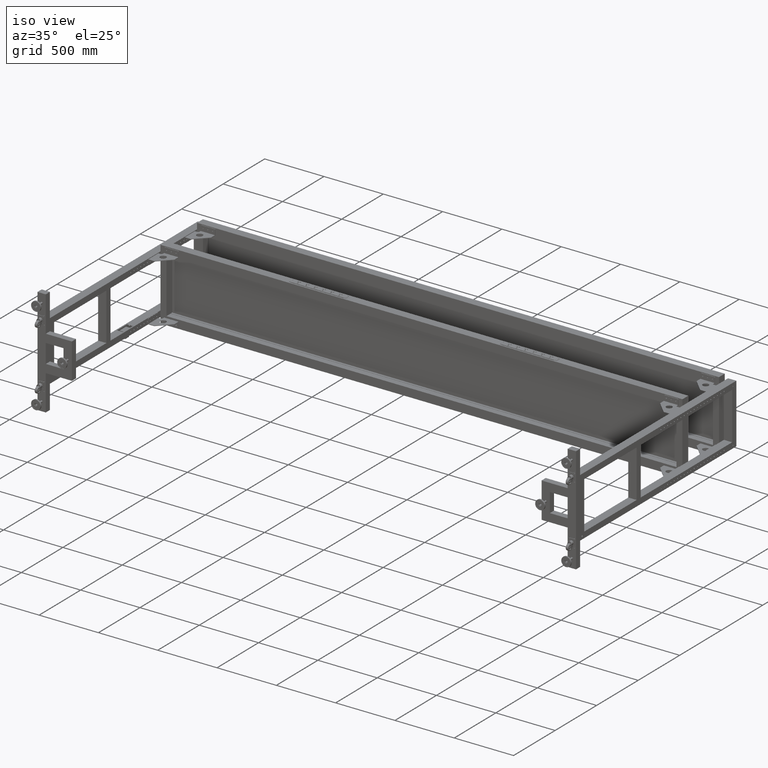
[diagram: clean part render]
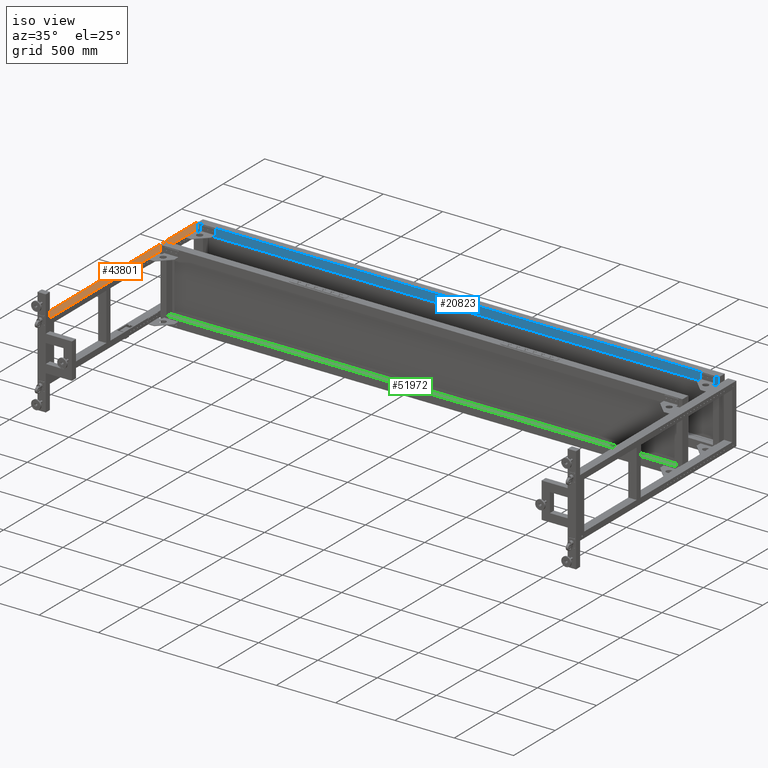
[diagram: same view with three faces highlighted in distinct colors, each labeled with its STEP entity id]
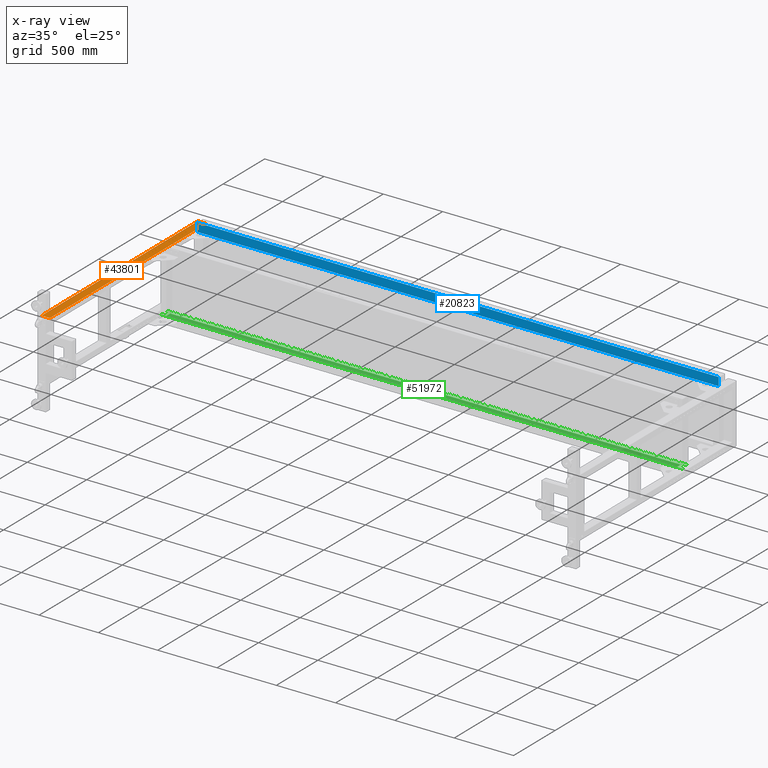
[diagram: x-ray of the same camera — body ghosted, the three highlighted faces saturated]
A machine part, iso view with three faces highlighted in distinct colors.
The next image is the same camera in x-ray (body ghosted, the three faces saturated) — at least one of them is partly hidden behind the body in this view.
Their STEP definitions:

[orange] entity #43801 — the highlighted planar face has unit normal (0, 0, -1).
#596 = DIRECTION ( 'NONE',  ( 0.000000000000000000, 1.000000000000000000, 0.000000000000000000 ) ) ;
#1081 = VECTOR ( 'NONE', #60740, 1000.000000000000000 ) ;
#1624 = DIRECTION ( 'NONE',  ( 1.000000000000000000, -1.585669478376821542E-15, 0.000000000000000000 ) ) ;
#5238 = DIRECTION ( 'NONE',  ( 0.000000000000000000, -1.000000000000000000, 0.000000000000000000 ) ) ;
#6074 = CARTESIAN_POINT ( 'NONE',  ( -1268.172487437185964, 926.9410804020109254, 249.9999999999999716 ) ) ;
#6688 = VECTOR ( 'NONE', #596, 1000.000000000000000 ) ;
#7845 = VERTEX_POINT ( 'NONE', #36109 ) ;
#8315 = LINE ( 'NONE', #39427, #73375 ) ;
#9316 = LINE ( 'NONE', #33884, #35813 ) ;
#9855 = CARTESIAN_POINT ( 'NONE',  ( -1268.156444386293742, 926.9410804020110390, 249.9999999999999716 ) ) ;
#11998 = CARTESIAN_POINT ( 'NONE',  ( -1338.172487437185055, -844.5589195979888473, 249.9999999999999716 ) ) ;
#14146 = VERTEX_POINT ( 'NONE', #57082 ) ;
#14349 = AXIS2_PLACEMENT_3D ( 'NONE', #61308, #17506, #5238 ) ;
#14712 = CARTESIAN_POINT ( 'NONE',  ( -1268.172487437185964, 1036.441080402011039, 250.0000000000000000 ) ) ;
#14898 = VECTOR ( 'NONE', #29719, 1000.000000000000000 ) ;
#14931 = VERTEX_POINT ( 'NONE', #38872 ) ;
#17506 = DIRECTION ( 'NONE',  ( 0.000000000000000000, 0.000000000000000000, -1.000000000000000000 ) ) ;
#18362 = LINE ( 'NONE', #74009, #45123 ) ;
#18543 = CARTESIAN_POINT ( 'NONE',  ( -1268.172487437185964, 996.9410804020108117, 249.9999999999999716 ) ) ;
#19083 = VECTOR ( 'NONE', #1624, 1000.000000000000000 ) ;
#22215 = DIRECTION ( 'NONE',  ( -1.000000000000000000, 0.000000000000000000, 0.000000000000000000 ) ) ;
#23491 = LINE ( 'NONE', #35766, #1081 ) ;
#24353 = CARTESIAN_POINT ( 'NONE',  ( -1268.172487437185964, 986.4410804020109254, 250.0000000000000000 ) ) ;
#26244 = ORIENTED_EDGE ( 'NONE', *, *, #32363, .T. ) ;
#26628 = EDGE_CURVE ( 'NONE', #53246, #14931, #51560, .T. ) ;
#27357 = DIRECTION ( 'NONE',  ( 0.000000000000000000, 1.000000000000000000, 0.000000000000000000 ) ) ;
#28766 = EDGE_CURVE ( 'NONE', #14146, #30409, #23491, .T. ) ;
#28950 = CARTESIAN_POINT ( 'NONE',  ( -1268.172487437185055, 919.4410804020111527, 249.9999999999999716 ) ) ;
#29719 = DIRECTION ( 'NONE',  ( -1.000000000000000000, 0.000000000000000000, 0.000000000000000000 ) ) ;
#30409 = VERTEX_POINT ( 'NONE', #11998 ) ;
#31295 = DIRECTION ( 'NONE',  ( -1.000000000000000078E-15, -1.000000000000000000, -0.000000000000000000 ) ) ;
#31688 = VERTEX_POINT ( 'NONE', #18543 ) ;
#31747 = CARTESIAN_POINT ( 'NONE',  ( -1268.172487437185964, 926.9410804020109254, 249.9999999999999716 ) ) ;
#32037 = ORIENTED_EDGE ( 'NONE', *, *, #28766, .T. ) ;
#32363 = EDGE_CURVE ( 'NONE', #65714, #49485, #38393, .T. ) ;
#33656 = VECTOR ( 'NONE', #31295, 1000.000000000000000 ) ;
#33884 = CARTESIAN_POINT ( 'NONE',  ( -1268.172487437185964, 986.4410804020109254, 250.0000000000000000 ) ) ;
#35527 = EDGE_CURVE ( 'NONE', #61952, #14146, #8315, .T. ) ;
#35766 = CARTESIAN_POINT ( 'NONE',  ( -1338.172487437185964, 986.4410804020109254, 250.0000000000000000 ) ) ;
#35813 = VECTOR ( 'NONE', #27357, 1000.000000000000000 ) ;
#36109 = CARTESIAN_POINT ( 'NONE',  ( -1268.172487437185055, -844.5589195979888473, 249.9999999999999716 ) ) ;
#36650 = LINE ( 'NONE', #78827, #14898 ) ;
#37132 = PLANE ( 'NONE',  #14349 ) ;
#37664 = CARTESIAN_POINT ( 'NONE',  ( -1338.172487437185055, 919.4410804020136538, 249.9999999999999716 ) ) ;
#37765 = ORIENTED_EDGE ( 'NONE', *, *, #39877, .T. ) ;
#38016 = EDGE_LOOP ( 'NONE', ( #56034, #77071, #53940, #32037, #73198, #37765, #47497, #69491, #26244 ) ) ;
#38393 = LINE ( 'NONE', #6074, #61490 ) ;
#38872 = CARTESIAN_POINT ( 'NONE',  ( -1268.156444386293742, 919.4410804020135402, 249.9999999999999716 ) ) ;
#38931 = EDGE_CURVE ( 'NONE', #31688, #61952, #9316, .T. ) ;
#39427 = CARTESIAN_POINT ( 'NONE',  ( -1338.172487437185964, 1036.441080402011039, 250.0000000000000000 ) ) ;
#39877 = EDGE_CURVE ( 'NONE', #7845, #53246, #18362, .T. ) ;
#43185 = LINE ( 'NONE', #24353, #6688 ) ;
#43801 = ADVANCED_FACE ( 'NONE', ( #68239 ), #37132, .F. ) ;
#44212 = EDGE_CURVE ( 'NONE', #7845, #30409, #36650, .T. ) ;
#45123 = VECTOR ( 'NONE', #55610, 1000.000000000000000 ) ;
#47497 = ORIENTED_EDGE ( 'NONE', *, *, #26628, .T. ) ;
#49485 = VERTEX_POINT ( 'NONE', #31747 ) ;
#49711 = LINE ( 'NONE', #54654, #33656 ) ;
#51560 = LINE ( 'NONE', #37664, #19083 ) ;
#53246 = VERTEX_POINT ( 'NONE', #28950 ) ;
#53940 = ORIENTED_EDGE ( 'NONE', *, *, #35527, .T. ) ;
#54654 = CARTESIAN_POINT ( 'NONE',  ( -1268.156444386293742, 986.4410804020136538, 249.9999999999999716 ) ) ;
#55610 = DIRECTION ( 'NONE',  ( 0.000000000000000000, 1.000000000000000000, 0.000000000000000000 ) ) ;
#56034 = ORIENTED_EDGE ( 'NONE', *, *, #62739, .T. ) ;
#57082 = CARTESIAN_POINT ( 'NONE',  ( -1338.172487437185964, 1036.441080402011039, 250.0000000000000000 ) ) ;
#60740 = DIRECTION ( 'NONE',  ( 0.000000000000000000, -1.000000000000000000, 0.000000000000000000 ) ) ;
#61308 = CARTESIAN_POINT ( 'NONE',  ( -1303.172487437185964, 1011.441080402011039, 250.0000000000000000 ) ) ;
#61490 = VECTOR ( 'NONE', #69089, 1000.000000000000000 ) ;
#61952 = VERTEX_POINT ( 'NONE', #14712 ) ;
#62739 = EDGE_CURVE ( 'NONE', #49485, #31688, #43185, .T. ) ;
#65714 = VERTEX_POINT ( 'NONE', #9855 ) ;
#68239 = FACE_OUTER_BOUND ( 'NONE', #38016, .T. ) ;
#69089 = DIRECTION ( 'NONE',  ( -1.000000000000000000, 4.448884876874220047E-16, 0.000000000000000000 ) ) ;
#69491 = ORIENTED_EDGE ( 'NONE', *, *, #70607, .F. ) ;
#70607 = EDGE_CURVE ( 'NONE', #65714, #14931, #49711, .T. ) ;
#73198 = ORIENTED_EDGE ( 'NONE', *, *, #44212, .F. ) ;
#73375 = VECTOR ( 'NONE', #22215, 1000.000000000000000 ) ;
#74009 = CARTESIAN_POINT ( 'NONE',  ( -1268.172487437185055, -844.5589195979888473, 249.9999999999999716 ) ) ;
#77071 = ORIENTED_EDGE ( 'NONE', *, *, #38931, .T. ) ;
#78827 = CARTESIAN_POINT ( 'NONE',  ( -1338.172487437185055, -844.5589195979888473, 249.9999999999999716 ) ) ;

[blue] entity #20823 — the highlighted planar face has unit normal (0, 1, 0).
#2097 = EDGE_CURVE ( 'NONE', #16713, #72690, #52573, .T. ) ;
#4811 = CARTESIAN_POINT ( 'NONE',  ( 3129.827512562816537, 926.9410804020125170, 300.0000000000009095 ) ) ;
#6071 = ORIENTED_EDGE ( 'NONE', *, *, #15202, .F. ) ;
#8546 = DIRECTION ( 'NONE',  ( -4.369069478560389734E-31, -4.000000000000000311E-15, 1.000000000000000000 ) ) ;
#8863 = CARTESIAN_POINT ( 'NONE',  ( -1266.172487437185964, 926.9410804020119485, 230.0000000000009379 ) ) ;
#13281 = VECTOR ( 'NONE', #79767, 1000.000000000000000 ) ;
#14163 = ORIENTED_EDGE ( 'NONE', *, *, #59469, .F. ) ;
#14472 = DIRECTION ( 'NONE',  ( 0.000000000000000000, -4.000000000000000311E-15, 1.000000000000000000 ) ) ;
#15202 = EDGE_CURVE ( 'NONE', #22932, #72690, #42141, .T. ) ;
#15211 = AXIS2_PLACEMENT_3D ( 'NONE', #22442, #78096, #8546 ) ;
#15511 = CARTESIAN_POINT ( 'NONE',  ( 3129.827512562816537, 926.9410804020127443, 230.0000000000009379 ) ) ;
#16713 = VERTEX_POINT ( 'NONE', #15511 ) ;
#17905 = ORIENTED_EDGE ( 'NONE', *, *, #2097, .T. ) ;
#20823 = ADVANCED_FACE ( 'NONE', ( #33915 ), #71955, .F. ) ;
#22442 = CARTESIAN_POINT ( 'NONE',  ( -66.17248743718407411, 926.9410804020127443, 230.0000000000009379 ) ) ;
#22932 = VERTEX_POINT ( 'NONE', #71831 ) ;
#24926 = CARTESIAN_POINT ( 'NONE',  ( -66.17248743718407411, 926.9410804020125170, 300.0000000000009095 ) ) ;
#27172 = LINE ( 'NONE', #33697, #62658 ) ;
#32112 = VECTOR ( 'NONE', #70963, 1000.000000000000000 ) ;
#32907 = CARTESIAN_POINT ( 'NONE',  ( -66.17248743718407411, 926.9410804020127443, 230.0000000000009379 ) ) ;
#33697 = CARTESIAN_POINT ( 'NONE',  ( -1266.172487437185964, 926.9410804020119485, 230.0000000000009379 ) ) ;
#33915 = FACE_OUTER_BOUND ( 'NONE', #51564, .T. ) ;
#38637 = LINE ( 'NONE', #32907, #32112 ) ;
#42141 = LINE ( 'NONE', #24926, #13281 ) ;
#51564 = EDGE_LOOP ( 'NONE', ( #6071, #14163, #52417, #17905 ) ) ;
#52168 = CARTESIAN_POINT ( 'NONE',  ( 3129.827512562816537, 926.9410804020127443, 230.0000000000009379 ) ) ;
#52417 = ORIENTED_EDGE ( 'NONE', *, *, #79002, .T. ) ;
#52573 = LINE ( 'NONE', #52168, #67019 ) ;
#59469 = EDGE_CURVE ( 'NONE', #78485, #22932, #27172, .T. ) ;
#62658 = VECTOR ( 'NONE', #14472, 1000.000000000000000 ) ;
#67019 = VECTOR ( 'NONE', #70177, 1000.000000000000000 ) ;
#70177 = DIRECTION ( 'NONE',  ( 1.380395921165650489E-30, -4.000000000000000311E-15, 1.000000000000000000 ) ) ;
#70963 = DIRECTION ( 'NONE',  ( 1.000000000000000000, -1.092267369640097868E-16, 0.000000000000000000 ) ) ;
#71831 = CARTESIAN_POINT ( 'NONE',  ( -1266.172487437185964, 926.9410804020117212, 300.0000000000009095 ) ) ;
#71955 = PLANE ( 'NONE',  #15211 ) ;
#72690 = VERTEX_POINT ( 'NONE', #4811 ) ;
#78096 = DIRECTION ( 'NONE',  ( 1.092267369640097868E-16, 1.000000000000000000, 4.000000000000000311E-15 ) ) ;
#78485 = VERTEX_POINT ( 'NONE', #8863 ) ;
#79002 = EDGE_CURVE ( 'NONE', #78485, #16713, #38637, .T. ) ;
#79767 = DIRECTION ( 'NONE',  ( 1.000000000000000000, -1.092267369640097868E-16, 0.000000000000000000 ) ) ;

[green] entity #51972 — the highlighted planar face has unit normal (0, 0, -1).
#752 = CARTESIAN_POINT ( 'NONE',  ( 3084.827512562816537, 491.9410804020131991, -230.0000000000000568 ) ) ;
#1351 = CARTESIAN_POINT ( 'NONE',  ( 3130.827512562816082, 551.9410804020131991, -229.9999999999998863 ) ) ;
#1687 = EDGE_CURVE ( 'NONE', #68895, #52129, #57991, .T. ) ;
#1979 = CARTESIAN_POINT ( 'NONE',  ( 3084.827512562816537, 551.9410804020131991, -229.9999999999998863 ) ) ;
#2007 = ORIENTED_EDGE ( 'NONE', *, *, #1687, .T. ) ;
#3662 = VECTOR ( 'NONE', #32541, 1000.000000000000000 ) ;
#3765 = ORIENTED_EDGE ( 'NONE', *, *, #72386, .T. ) ;
#4246 = LINE ( 'NONE', #30028, #68874 ) ;
#4885 = CARTESIAN_POINT ( 'NONE',  ( -66.17248743718451465, 556.9410804020131991, -229.9999999999998863 ) ) ;
#5128 = CARTESIAN_POINT ( 'NONE',  ( 3129.827512562816537, 551.9410804020131991, -229.9999999999998863 ) ) ;
#6133 = DIRECTION ( 'NONE',  ( -3.450989802914125775E-16, 1.000000000000000000, 2.603491776919587014E-15 ) ) ;
#6586 = CARTESIAN_POINT ( 'NONE',  ( 3080.256801884698689, 555.4310804020055912, -229.9999999999998863 ) ) ;
#7078 = EDGE_CURVE ( 'NONE', #37967, #74424, #4246, .T. ) ;
#7830 = EDGE_LOOP ( 'NONE', ( #42317, #54702, #51857, #41904, #37523, #70458, #2007, #40899, #3765, #71652, #55604, #55761 ) ) ;
#7854 = LINE ( 'NONE', #25868, #8655 ) ;
#8615 = CARTESIAN_POINT ( 'NONE',  ( -1266.172487437185964, 556.9410804020124033, -229.9999999999998863 ) ) ;
#8655 = VECTOR ( 'NONE', #69235, 1000.000000000000000 ) ;
#8894 = VERTEX_POINT ( 'NONE', #47241 ) ;
#9342 = EDGE_CURVE ( 'NONE', #13826, #51746, #10287, .T. ) ;
#10287 = LINE ( 'NONE', #66344, #27370 ) ;
#11121 = DIRECTION ( 'NONE',  ( -1.000000000000000000, -3.450989802914125775E-16, 0.000000000000000000 ) ) ;
#12256 = DIRECTION ( 'NONE',  ( -1.000000000000000000, 8.609709061765234248E-17, -4.627323453246184469E-32 ) ) ;
#12785 = VECTOR ( 'NONE', #11121, 1000.000000000000000 ) ;
#13093 = CARTESIAN_POINT ( 'NONE',  ( 3080.256801884698689, 555.4410804020131991, -229.9999999999998863 ) ) ;
#13703 = CARTESIAN_POINT ( 'NONE',  ( -1266.172487437185964, 551.9410804020124033, -229.9999999999998863 ) ) ;
#13826 = VERTEX_POINT ( 'NONE', #5128 ) ;
#14445 = VERTEX_POINT ( 'NONE', #32011 ) ;
#14475 = VECTOR ( 'NONE', #26336, 1000.000000000000000 ) ;
#14577 = CARTESIAN_POINT ( 'NONE',  ( 3129.827512562816537, 486.9410804020131991, -230.0000000000000853 ) ) ;
#15019 = DIRECTION ( 'NONE',  ( 1.000000000000000000, -1.092267369640097868E-16, 0.000000000000000000 ) ) ;
#15866 = EDGE_LOOP ( 'NONE', ( #59660, #52878, #57530, #67482 ) ) ;
#17654 = LINE ( 'NONE', #43743, #12785 ) ;
#17979 = DIRECTION ( 'NONE',  ( 2.843709115055581012E-31, 2.603491776919587014E-15, -1.000000000000000000 ) ) ;
#18220 = EDGE_CURVE ( 'NONE', #72486, #54968, #49519, .T. ) ;
#18349 = LINE ( 'NONE', #60940, #58538 ) ;
#18373 = PLANE ( 'NONE',  #40587 ) ;
#21841 = EDGE_CURVE ( 'NONE', #58013, #14445, #49508, .T. ) ;
#21970 = VERTEX_POINT ( 'NONE', #76477 ) ;
#22493 = EDGE_CURVE ( 'NONE', #36323, #25257, #41582, .T. ) ;
#25257 = VERTEX_POINT ( 'NONE', #72649 ) ;
#25868 = CARTESIAN_POINT ( 'NONE',  ( -66.17248743718451465, 556.9410804020131991, -229.9999999999998863 ) ) ;
#26336 = DIRECTION ( 'NONE',  ( 1.000000000000000000, 4.016660501602217896E-16, 1.445803842448548424E-31 ) ) ;
#27370 = VECTOR ( 'NONE', #78615, 1000.000000000000000 ) ;
#28532 = CARTESIAN_POINT ( 'NONE',  ( -66.17248743718451465, 486.9410804020131422, -230.0000000000000853 ) ) ;
#28840 = DIRECTION ( 'NONE',  ( -1.000000000000000000, 5.656706986880919977E-17, 1.445803842448548424E-31 ) ) ;
#29066 = VECTOR ( 'NONE', #15019, 1000.000000000000000 ) ;
#29430 = EDGE_CURVE ( 'NONE', #68895, #21970, #70818, .T. ) ;
#29464 = FACE_OUTER_BOUND ( 'NONE', #7830, .T. ) ;
#29821 = DIRECTION ( 'NONE',  ( 1.000000000000000000, 0.000000000000000000, -0.000000000000000000 ) ) ;
#30028 = CARTESIAN_POINT ( 'NONE',  ( -1267.172487437185964, 551.9410804020124033, -229.9999999999998863 ) ) ;
#30173 = EDGE_CURVE ( 'NONE', #43133, #37967, #39487, .T. ) ;
#30458 = DIRECTION ( 'NONE',  ( 0.000000000000000000, 1.000000000000000000, 2.603491776919587014E-15 ) ) ;
#31659 = LINE ( 'NONE', #75435, #59828 ) ;
#32011 = CARTESIAN_POINT ( 'NONE',  ( -1216.601776759067889, 555.4310804020047954, -229.9999999999998863 ) ) ;
#32541 = DIRECTION ( 'NONE',  ( 0.000000000000000000, 1.000000000000000000, 2.603491776919587014E-15 ) ) ;
#32692 = CARTESIAN_POINT ( 'NONE',  ( 3080.256801884698689, 536.9410804020133128, -229.9999999999998579 ) ) ;
#32768 = EDGE_CURVE ( 'NONE', #54968, #13826, #37388, .T. ) ;
#32943 = CARTESIAN_POINT ( 'NONE',  ( -1221.172487437186192, 491.9410804020124033, -230.0000000000000568 ) ) ;
#33273 = VERTEX_POINT ( 'NONE', #56925 ) ;
#36323 = VERTEX_POINT ( 'NONE', #32692 ) ;
#37388 = LINE ( 'NONE', #1351, #14475 ) ;
#37523 = ORIENTED_EDGE ( 'NONE', *, *, #75595, .F. ) ;
#37967 = VERTEX_POINT ( 'NONE', #38581 ) ;
#38581 = CARTESIAN_POINT ( 'NONE',  ( -1221.172487437186192, 551.9410804020124033, -229.9999999999998863 ) ) ;
#39487 = LINE ( 'NONE', #32943, #3662 ) ;
#40587 = AXIS2_PLACEMENT_3D ( 'NONE', #4885, #17979, #60957 ) ;
#40899 = ORIENTED_EDGE ( 'NONE', *, *, #47999, .T. ) ;
#41582 = LINE ( 'NONE', #66546, #41752 ) ;
#41752 = VECTOR ( 'NONE', #60405, 1000.000000000000000 ) ;
#41904 = ORIENTED_EDGE ( 'NONE', *, *, #30173, .F. ) ;
#41913 = EDGE_CURVE ( 'NONE', #8894, #51746, #7854, .T. ) ;
#42317 = ORIENTED_EDGE ( 'NONE', *, *, #41913, .F. ) ;
#42543 = FACE_BOUND ( 'NONE', #15866, .T. ) ;
#43133 = VERTEX_POINT ( 'NONE', #52064 ) ;
#43136 = CARTESIAN_POINT ( 'NONE',  ( -1266.172487437185964, 556.9410804020124033, -229.9999999999998863 ) ) ;
#43743 = CARTESIAN_POINT ( 'NONE',  ( 3130.827512562816082, 491.9410804020131991, -230.0000000000000568 ) ) ;
#43955 = LINE ( 'NONE', #43136, #78635 ) ;
#45423 = VECTOR ( 'NONE', #12256, 1000.000000000000000 ) ;
#47009 = CARTESIAN_POINT ( 'NONE',  ( -1266.172487437185964, 486.9410804020124033, -230.0000000000000853 ) ) ;
#47241 = CARTESIAN_POINT ( 'NONE',  ( -1266.172487437185964, 556.9410804020124033, -229.9999999999998863 ) ) ;
#47999 = EDGE_CURVE ( 'NONE', #52129, #33273, #18349, .T. ) ;
#48271 = DIRECTION ( 'NONE',  ( -3.450989802914125775E-16, 1.000000000000000000, 2.603491776919587014E-15 ) ) ;
#49508 = LINE ( 'NONE', #68713, #45423 ) ;
#49519 = LINE ( 'NONE', #62187, #74877 ) ;
#51746 = VERTEX_POINT ( 'NONE', #60168 ) ;
#51857 = ORIENTED_EDGE ( 'NONE', *, *, #7078, .F. ) ;
#51972 = ADVANCED_FACE ( 'NONE', ( #29464, #42543 ), #18373, .F. ) ;
#52064 = CARTESIAN_POINT ( 'NONE',  ( -1221.172487437186192, 491.9410804020124033, -230.0000000000000568 ) ) ;
#52129 = VERTEX_POINT ( 'NONE', #14577 ) ;
#52878 = ORIENTED_EDGE ( 'NONE', *, *, #21841, .F. ) ;
#54371 = EDGE_CURVE ( 'NONE', #74424, #8894, #43955, .T. ) ;
#54702 = ORIENTED_EDGE ( 'NONE', *, *, #54371, .F. ) ;
#54968 = VERTEX_POINT ( 'NONE', #1979 ) ;
#55604 = ORIENTED_EDGE ( 'NONE', *, *, #32768, .T. ) ;
#55761 = ORIENTED_EDGE ( 'NONE', *, *, #9342, .T. ) ;
#56623 = DIRECTION ( 'NONE',  ( 0.000000000000000000, -1.000000000000000000, -2.000602769257179879E-15 ) ) ;
#56925 = CARTESIAN_POINT ( 'NONE',  ( 3129.827512562816537, 491.9410804020131991, -230.0000000000000568 ) ) ;
#57530 = ORIENTED_EDGE ( 'NONE', *, *, #66918, .T. ) ;
#57991 = LINE ( 'NONE', #28532, #29066 ) ;
#58013 = VERTEX_POINT ( 'NONE', #6586 ) ;
#58538 = VECTOR ( 'NONE', #48271, 1000.000000000000000 ) ;
#59660 = ORIENTED_EDGE ( 'NONE', *, *, #80710, .F. ) ;
#59828 = VECTOR ( 'NONE', #56623, 1000.000000000000000 ) ;
#60168 = CARTESIAN_POINT ( 'NONE',  ( 3129.827512562816537, 556.9410804020131991, -229.9999999999998863 ) ) ;
#60405 = DIRECTION ( 'NONE',  ( -1.000000000000000000, 1.092267369640097868E-16, 0.000000000000000000 ) ) ;
#60918 = LINE ( 'NONE', #67049, #73527 ) ;
#60940 = CARTESIAN_POINT ( 'NONE',  ( 3129.827512562816537, 556.9410804020131991, -229.9999999999998863 ) ) ;
#60957 = DIRECTION ( 'NONE',  ( -1.092267369640097868E-16, -1.000000000000000000, -2.603491776919587014E-15 ) ) ;
#62187 = CARTESIAN_POINT ( 'NONE',  ( 3084.827512562816537, 491.9410804020131991, -230.0000000000000568 ) ) ;
#64681 = DIRECTION ( 'NONE',  ( 0.000000000000000000, 1.000000000000000000, 2.603491776919587014E-15 ) ) ;
#66344 = CARTESIAN_POINT ( 'NONE',  ( 3129.827512562816537, 556.9410804020131991, -229.9999999999998863 ) ) ;
#66546 = CARTESIAN_POINT ( 'NONE',  ( 1181.827512562815627, 536.9410804020131991, -229.9999999999998579 ) ) ;
#66918 = EDGE_CURVE ( 'NONE', #58013, #36323, #67530, .T. ) ;
#67049 = CARTESIAN_POINT ( 'NONE',  ( -1267.172487437185964, 491.9410804020124033, -230.0000000000000568 ) ) ;
#67482 = ORIENTED_EDGE ( 'NONE', *, *, #22493, .T. ) ;
#67530 = LINE ( 'NONE', #13093, #77589 ) ;
#68713 = CARTESIAN_POINT ( 'NONE',  ( -18.17248743718447201, 555.4310804020133219, -229.9999999999998863 ) ) ;
#68874 = VECTOR ( 'NONE', #28840, 1000.000000000000000 ) ;
#68895 = VERTEX_POINT ( 'NONE', #47009 ) ;
#69082 = VECTOR ( 'NONE', #64681, 1000.000000000000000 ) ;
#69235 = DIRECTION ( 'NONE',  ( 1.000000000000000000, -1.092267369640097868E-16, 0.000000000000000000 ) ) ;
#70458 = ORIENTED_EDGE ( 'NONE', *, *, #29430, .F. ) ;
#70818 = LINE ( 'NONE', #8615, #69082 ) ;
#71652 = ORIENTED_EDGE ( 'NONE', *, *, #18220, .T. ) ;
#72386 = EDGE_CURVE ( 'NONE', #33273, #72486, #17654, .T. ) ;
#72486 = VERTEX_POINT ( 'NONE', #752 ) ;
#72649 = CARTESIAN_POINT ( 'NONE',  ( -1216.601776759067889, 536.9410804020125170, -229.9999999999998579 ) ) ;
#73527 = VECTOR ( 'NONE', #29821, 1000.000000000000000 ) ;
#73648 = DIRECTION ( 'NONE',  ( 3.450989802914125775E-16, -1.000000000000000000, -2.000602769257179879E-15 ) ) ;
#74424 = VERTEX_POINT ( 'NONE', #13703 ) ;
#74877 = VECTOR ( 'NONE', #6133, 1000.000000000000000 ) ;
#75435 = CARTESIAN_POINT ( 'NONE',  ( -1216.601776759067889, 555.4410804020124033, -229.9999999999998863 ) ) ;
#75595 = EDGE_CURVE ( 'NONE', #21970, #43133, #60918, .T. ) ;
#76477 = CARTESIAN_POINT ( 'NONE',  ( -1266.172487437185964, 491.9410804020124033, -230.0000000000000568 ) ) ;
#77589 = VECTOR ( 'NONE', #73648, 1000.000000000000000 ) ;
#78615 = DIRECTION ( 'NONE',  ( -3.450989802914125775E-16, 1.000000000000000000, 2.603491776919587014E-15 ) ) ;
#78635 = VECTOR ( 'NONE', #30458, 1000.000000000000000 ) ;
#80710 = EDGE_CURVE ( 'NONE', #14445, #25257, #31659, .T. ) ;